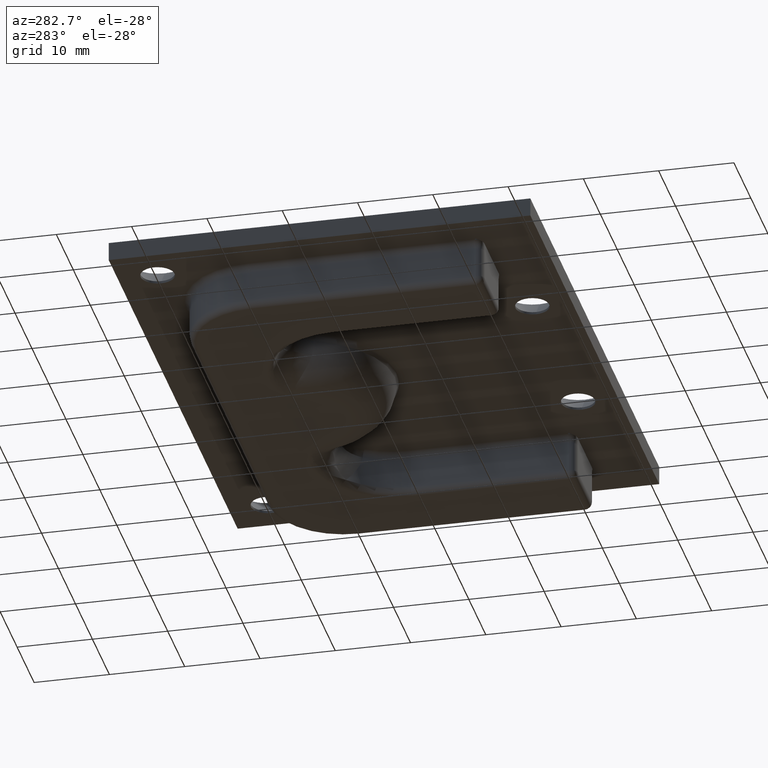
[diagram: clean part render]
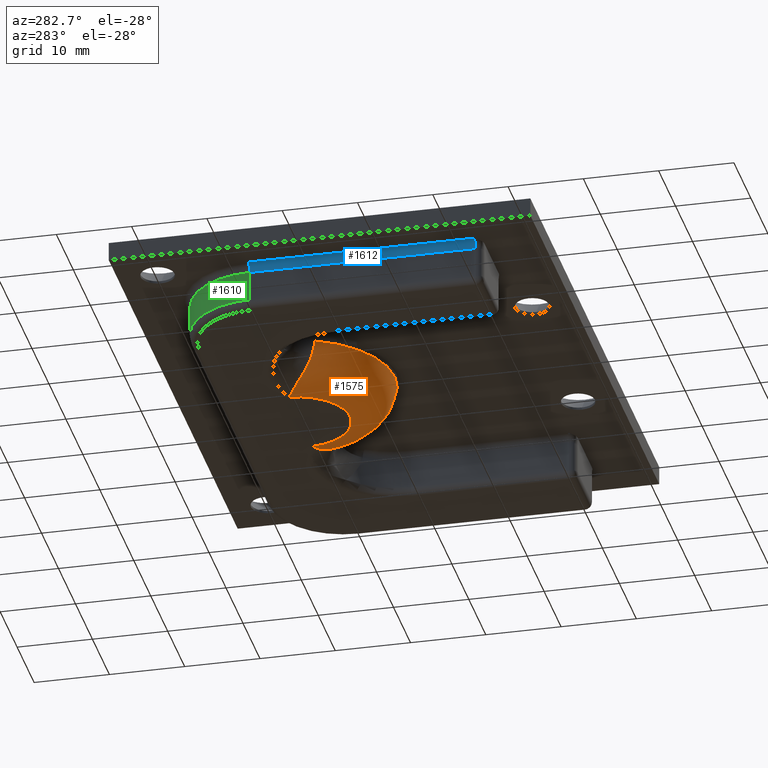
[diagram: same view with three faces highlighted in distinct colors, each labeled with its STEP entity id]
A machine part, auxiliary view with three faces highlighted in distinct colors.
Their STEP definitions:

[orange] entity #1575 — the highlighted toroidal blend (fillet) surface has major radius 7 mm and minor (blend) radius 6 mm.
#296=TOROIDAL_SURFACE('',#1699,7.,6.);
#313=B_SPLINE_CURVE_WITH_KNOTS('',3,(#2564,#2565,#2566,#2567,#2568,#2569,
#2570,#2571,#2572,#2573,#2574,#2575),.UNSPECIFIED.,.F.,.F.,(4,2,1,1,1,1,
1,1,4),(-0.00170668173573874,0.,0.251169001152056,0.502338002304112,0.753507003456168,
0.879091504032196,1.00467600460822,1.13026050518425,1.25584500576028),
 .UNSPECIFIED.);
#315=B_SPLINE_CURVE_WITH_KNOTS('',3,(#2608,#2609,#2610,#2611),
 .UNSPECIFIED.,.F.,.F.,(4,4),(-0.950503942453911,-0.58590948730544),
 .UNSPECIFIED.);
#316=B_SPLINE_CURVE_WITH_KNOTS('',3,(#2622,#2623,#2624,#2625,#2626,#2627,
#2628,#2629,#2630,#2631,#2632,#2633),.UNSPECIFIED.,.F.,.F.,(4,1,1,1,1,1,
1,2,4),(0.,0.251169020170854,0.376753530256281,0.502338040341707,0.627922550427134,
0.753507060512561,1.00467608068341,1.25584510085427,1.25755163621248),
 .UNSPECIFIED.);
#317=B_SPLINE_CURVE_WITH_KNOTS('',3,(#2634,#2635,#2636,#2637),
 .UNSPECIFIED.,.F.,.F.,(4,4),(-0.364594456150857,0.),.UNSPECIFIED.);
#397=FACE_OUTER_BOUND('',#509,.T.);
#509=EDGE_LOOP('',(#1122,#1123,#1124,#1125,#1126,#1127));
#628=CIRCLE('',#1696,12.9384599116647);
#631=CIRCLE('',#1700,7.);
#723=VERTEX_POINT('',#2456);
#727=VERTEX_POINT('',#2548);
#729=VERTEX_POINT('',#2551);
#730=VERTEX_POINT('',#2613);
#732=VERTEX_POINT('',#2619);
#733=VERTEX_POINT('',#2621);
#877=EDGE_CURVE('',#729,#727,#313,.T.);
#879=EDGE_CURVE('',#727,#723,#315,.T.);
#880=EDGE_CURVE('',#723,#730,#628,.T.);
#883=EDGE_CURVE('',#732,#729,#631,.T.);
#884=EDGE_CURVE('',#733,#732,#316,.T.);
#885=EDGE_CURVE('',#730,#733,#317,.T.);
#1122=ORIENTED_EDGE('',*,*,#879,.F.);
#1123=ORIENTED_EDGE('',*,*,#877,.F.);
#1124=ORIENTED_EDGE('',*,*,#883,.F.);
#1125=ORIENTED_EDGE('',*,*,#884,.F.);
#1126=ORIENTED_EDGE('',*,*,#885,.F.);
#1127=ORIENTED_EDGE('',*,*,#880,.F.);
#1575=ADVANCED_FACE('',(#397),#296,.T.);
#1696=AXIS2_PLACEMENT_3D('',#2614,#1922,#1923);
#1699=AXIS2_PLACEMENT_3D('',#2618,#1928,#1929);
#1700=AXIS2_PLACEMENT_3D('',#2620,#1930,#1931);
#1922=DIRECTION('center_axis',(0.,0.,1.));
#1923=DIRECTION('ref_axis',(-5.23085848140699E-16,-1.,0.));
#1928=DIRECTION('center_axis',(0.,0.,1.));
#1929=DIRECTION('ref_axis',(1.,0.,0.));
#1930=DIRECTION('center_axis',(0.,0.,-1.));
#1931=DIRECTION('ref_axis',(1.,0.,0.));
#2456=CARTESIAN_POINT('',(-11.916796876554,6.46078407996766,-0.857142857142885));
#2548=CARTESIAN_POINT('',(-11.4977239630233,7.00721637078581,-2.72727272727264));
#2551=CARTESIAN_POINT('',(-6.98328978842821,11.0166122355353,-6.));
#2564=CARTESIAN_POINT('Ctrl Pts',(-6.98328978842821,11.0166122355353,-6.));
#2565=CARTESIAN_POINT('Ctrl Pts',(-6.98623326259951,11.0152074654081,-6.));
#2566=CARTESIAN_POINT('Ctrl Pts',(-6.98917535849277,11.0138018114962,-5.99999780667354));
#2567=CARTESIAN_POINT('Ctrl Pts',(-7.42531593138441,10.8051522116644,-5.99929342928215));
#2568=CARTESIAN_POINT('Ctrl Pts',(-8.27110855095829,10.3290729599439,-5.89730841266764));
#2569=CARTESIAN_POINT('Ctrl Pts',(-9.3864222476344,9.48629855100556,-5.46305535116644));
#2570=CARTESIAN_POINT('Ctrl Pts',(-10.1500620509365,8.72300467955316,-4.89366413607577));
#2571=CARTESIAN_POINT('Ctrl Pts',(-10.6546263018114,8.11319487348776,-4.32223994364665));
#2572=CARTESIAN_POINT('Ctrl Pts',(-10.9765292812356,7.68145812826686,-3.8460280934141));
#2573=CARTESIAN_POINT('Ctrl Pts',(-11.2545862272444,7.29096337215504,-3.316228624592));
#2574=CARTESIAN_POINT('Ctrl Pts',(-11.418070944543,7.08560638806936,-2.92856311897226));
#2575=CARTESIAN_POINT('Ctrl Pts',(-11.4977239630233,7.00721637078581,-2.72727272727264));
#2608=CARTESIAN_POINT('Ctrl Pts',(-11.4977239630233,7.00721637078581,-2.72727272727264));
#2609=CARTESIAN_POINT('Ctrl Pts',(-11.7289710416083,6.77963601246544,-2.14289041614559));
#2610=CARTESIAN_POINT('Ctrl Pts',(-11.8583260256017,6.56531957094804,-1.51039161354253));
#2611=CARTESIAN_POINT('Ctrl Pts',(-11.9169319182668,6.46123545538945,-0.857083058830044));
#2613=CARTESIAN_POINT('',(11.9167968765538,6.46078407996725,-0.857142857142896));
#2614=CARTESIAN_POINT('Origin',(2.22044604925031E-15,11.5,-0.857142857142857));
#2618=CARTESIAN_POINT('Origin',(2.22044604925031E-15,11.5,0.));
#2619=CARTESIAN_POINT('',(6.98328978842822,11.0166122355353,-6.));
#2620=CARTESIAN_POINT('Origin',(2.22044604925031E-15,11.5,-6.));
#2621=CARTESIAN_POINT('',(11.4977239630233,7.00721637078581,-2.72727272727264));
#2622=CARTESIAN_POINT('Ctrl Pts',(11.4977239630233,7.00721637078581,-2.72727272727264));
#2623=CARTESIAN_POINT('Ctrl Pts',(11.3384179139999,7.16399641722447,-3.12985354115579));
#2624=CARTESIAN_POINT('Ctrl Pts',(11.0844118238203,7.53828450565104,-3.68735695889978));
#2625=CARTESIAN_POINT('Ctrl Pts',(10.6543981870732,8.11284087741195,-4.32209043936628));
#2626=CARTESIAN_POINT('Ctrl Pts',(10.2766563198052,8.56993571602306,-4.7505059204097));
#2627=CARTESIAN_POINT('Ctrl Pts',(9.84406299400316,9.02906404177418,-5.12171864078254));
#2628=CARTESIAN_POINT('Ctrl Pts',(9.20061402947328,9.62661185026056,-5.53542506265548));
#2629=CARTESIAN_POINT('Ctrl Pts',(8.27088820045195,10.3293765006812,-5.89737085164065));
#2630=CARTESIAN_POINT('Ctrl Pts',(7.42533970057211,10.8051184787589,-5.99927736195281));
#2631=CARTESIAN_POINT('Ctrl Pts',(6.98917473840528,11.013802213345,-5.99999788271879));
#2632=CARTESIAN_POINT('Ctrl Pts',(6.98623301014591,11.0152075858917,-6.));
#2633=CARTESIAN_POINT('Ctrl Pts',(6.98328978842821,11.0166122355353,-6.));
#2634=CARTESIAN_POINT('Ctrl Pts',(11.9169319184498,6.46123545507242,-0.857083058897544));
#2635=CARTESIAN_POINT('Ctrl Pts',(11.8583260255588,6.56531957112938,-1.51039162375887));
#2636=CARTESIAN_POINT('Ctrl Pts',(11.7289710422441,6.77963601183974,-2.14289041453894));
#2637=CARTESIAN_POINT('Ctrl Pts',(11.4977239630233,7.00721637078581,-2.72727272727264));

[blue] entity #1612 — the highlighted cylindrical surface (edge-blend (fillet) strip) has radius 1 mm, axis along (0, -1, 0).
#37=LINE('',#2852,#151);
#69=LINE('',#3007,#183);
#151=VECTOR('',#1960,30.);
#183=VECTOR('',#2136,30.);
#351=CYLINDRICAL_SURFACE('',#1783,1.);
#434=FACE_OUTER_BOUND('',#551,.T.);
#551=EDGE_LOOP('',(#1291,#1292,#1293,#1294));
#653=CIRCLE('',#1732,1.);
#681=CIRCLE('',#1784,1.);
#751=VERTEX_POINT('',#2849);
#752=VERTEX_POINT('',#2851);
#767=VERTEX_POINT('',#2903);
#791=VERTEX_POINT('',#3003);
#908=EDGE_CURVE('',#752,#751,#37,.T.);
#931=EDGE_CURVE('',#752,#767,#653,.T.);
#983=EDGE_CURVE('',#791,#767,#69,.T.);
#984=EDGE_CURVE('',#791,#751,#681,.T.);
#1291=ORIENTED_EDGE('',*,*,#931,.F.);
#1292=ORIENTED_EDGE('',*,*,#908,.T.);
#1293=ORIENTED_EDGE('',*,*,#984,.F.);
#1294=ORIENTED_EDGE('',*,*,#983,.T.);
#1612=ADVANCED_FACE('',(#434),#351,.F.);
#1732=AXIS2_PLACEMENT_3D('',#2908,#2010,#2011);
#1783=AXIS2_PLACEMENT_3D('',#3008,#2137,#2138);
#1784=AXIS2_PLACEMENT_3D('',#3009,#2139,#2140);
#1960=DIRECTION('',(0.,1.,0.));
#2010=DIRECTION('center_axis',(-8.88178419700125E-16,1.,0.));
#2011=DIRECTION('ref_axis',(0.707106781186549,6.93889390390722E-16,0.707106781186546));
#2136=DIRECTION('',(0.,-1.,0.));
#2137=DIRECTION('center_axis',(0.,-1.,0.));
#2138=DIRECTION('ref_axis',(0.707106781186549,0.,0.707106781186546));
#2139=DIRECTION('center_axis',(0.,-1.,0.));
#2140=DIRECTION('ref_axis',(1.,0.,0.));
#2849=CARTESIAN_POINT('',(-33.5,10.5,0.));
#2851=CARTESIAN_POINT('',(-33.5,-19.5,0.));
#2852=CARTESIAN_POINT('',(-33.5,-10.25,0.));
#2903=CARTESIAN_POINT('',(-32.5,-19.5,-1.));
#2908=CARTESIAN_POINT('Origin',(-33.5,-19.5,-1.));
#3003=CARTESIAN_POINT('',(-32.5,10.5,-1.));
#3007=CARTESIAN_POINT('',(-32.5,-10.25,-1.));
#3008=CARTESIAN_POINT('Origin',(-33.5,-10.25,-1.));
#3009=CARTESIAN_POINT('Origin',(-33.5,10.5,-1.));

[green] entity #1610 — the highlighted cylindrical surface (partial cylindrical patch) has radius 10 mm, axis along (0, 0, -1).
#66=LINE('',#3000,#180);
#68=LINE('',#3004,#182);
#180=VECTOR('',#2127,4.);
#182=VECTOR('',#2131,4.);
#350=CYLINDRICAL_SURFACE('',#1780,10.);
#432=FACE_OUTER_BOUND('',#549,.T.);
#549=EDGE_LOOP('',(#1283,#1284,#1285,#1286));
#670=CIRCLE('',#1759,10.);
#680=CIRCLE('',#1781,10.);
#781=VERTEX_POINT('',#2953);
#783=VERTEX_POINT('',#2959);
#790=VERTEX_POINT('',#2999);
#791=VERTEX_POINT('',#3003);
#958=EDGE_CURVE('',#783,#781,#670,.T.);
#979=EDGE_CURVE('',#790,#781,#66,.T.);
#981=EDGE_CURVE('',#791,#783,#68,.T.);
#982=EDGE_CURVE('',#790,#791,#680,.T.);
#1283=ORIENTED_EDGE('',*,*,#958,.F.);
#1284=ORIENTED_EDGE('',*,*,#981,.F.);
#1285=ORIENTED_EDGE('',*,*,#982,.F.);
#1286=ORIENTED_EDGE('',*,*,#979,.T.);
#1610=ADVANCED_FACE('',(#432),#350,.T.);
#1759=AXIS2_PLACEMENT_3D('',#2961,#2074,#2075);
#1780=AXIS2_PLACEMENT_3D('',#3002,#2129,#2130);
#1781=AXIS2_PLACEMENT_3D('',#3005,#2132,#2133);
#2074=DIRECTION('center_axis',(0.,0.,-1.));
#2075=DIRECTION('ref_axis',(-0.707106781186548,0.707106781186547,0.));
#2127=DIRECTION('',(0.,0.,-1.));
#2129=DIRECTION('center_axis',(0.,0.,-1.));
#2130=DIRECTION('ref_axis',(-1.,2.22044604925031E-16,0.));
#2131=DIRECTION('',(0.,0.,-1.));
#2132=DIRECTION('center_axis',(0.,0.,1.));
#2133=DIRECTION('ref_axis',(-0.707106781186548,0.707106781186547,0.));
#2953=CARTESIAN_POINT('',(-22.5,20.5,-5.));
#2959=CARTESIAN_POINT('',(-32.5,10.5,-5.));
#2961=CARTESIAN_POINT('Origin',(-22.5,10.5,-5.));
#2999=CARTESIAN_POINT('',(-22.5,20.5,-1.));
#3000=CARTESIAN_POINT('',(-22.5,20.5,0.));
#3002=CARTESIAN_POINT('Origin',(-22.5,10.5,0.));
#3003=CARTESIAN_POINT('',(-32.5,10.5,-1.));
#3004=CARTESIAN_POINT('',(-32.5,10.5,0.));
#3005=CARTESIAN_POINT('Origin',(-22.5,10.5,-1.));